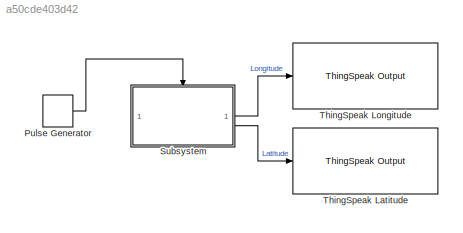
MODEL slx_a50cde403d42
KIND model
CONFIG AbsTol = auto
CONFIG EnableMultiTasking = off
CONFIG FixedStep = auto
CONFIG MaxStep = auto
CONFIG MinStep = auto
CONFIG RelTol = 1e-3
CONFIG SampleTimeConstraint = Unconstrained
CONFIG SolverName = VariableStepAuto
CONFIG StartTime = 0.0
CONFIG StopTime = 24225
BLOCK [DiscretePulseGenerator] Pulse Generator
  Period = 15
  PhaseDelay = 15
  PulseType = Time based
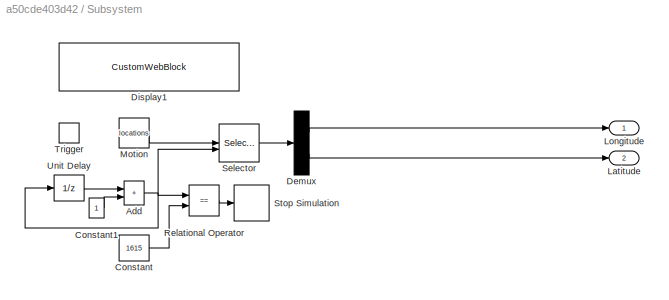
BLOCK [SubSystem] Subsystem
BLOCK [Sum] Subsystem/Add
  IconShape = rectangular
BLOCK [Constant] Subsystem/Constant
  Value = 1615
BLOCK [Constant] Subsystem/Constant1
BLOCK [Demux] Subsystem/Demux
  Outputs = 2
BLOCK [CustomWebBlock] Subsystem/Display1
  Configuration = {"components":[{"name":"DisplayComponent","settings":{"bold":false,"font":"DSEG7 Classic","fontColor":[255,255,200],"fontSize":"14","format":"short","formatString":"%d","italic":false,"position":[0,0,1,1],"underline":false}},{"name":"BackgroundImageComponent","settings":{"image":{"size":[300,80],"src":"data:image\/svg+xml;base64,PHN2ZyBpZD0iZnJhbWUiIHhtbG5zPSJodHRwOi8vd3d3LnczLm9yZy8yMDAwL3N2ZyIge...<+1637ch>
  LabelPosition = Bottom
  ShowInitialText = on
BLOCK [Outport] Subsystem/Latitude
  Port = 2
BLOCK [Outport] Subsystem/Longitude
BLOCK [Constant] Subsystem/Motion
  Value = locations
BLOCK [RelationalOperator] Subsystem/Relational Operator
  InputSameDT = off
  Operator = ==
  OutDataTypeStr = boolean
  RndMeth = Simplest
BLOCK [Selector] Subsystem/Selector
  IndexOptions = Index vector (port),Select all
  Indices = [1 3],1
  InputPortWidth = 2
  NumberOfDimensions = 2
  OutputSizes = 1,1
BLOCK [Stop] Subsystem/Stop Simulation
BLOCK [TriggerPort] Subsystem/Trigger
  PortDimensions = 1
  StatesWhenEnabling = held
  VariantControl = (inherit)
BLOCK [UnitDelay] Subsystem/Unit Delay
  HasFrameUpgradeWarning = on
  SampleTime = -1
BLOCK [Reference] ThingSpeak Latitude  REF=sldrtlib/Internet of Things/ThingSpeak Output
  SourceBlock = sldrtlib/Internet of Things/ThingSpeak Output
  SourceType = Simulink Desktop Real-Time ThingSpeak Output
BLOCK [Reference] ThingSpeak Longitude  REF=sldrtlib/Internet of Things/ThingSpeak Output
  SourceBlock = sldrtlib/Internet of Things/ThingSpeak Output
  SourceType = Simulink Desktop Real-Time ThingSpeak Output
LINE Pulse Generator:1 -> Subsystem:trigger
NET Subsystem/Add:1 -> Subsystem/Relational Operator:1, Subsystem/Selector:2, Subsystem/Unit Delay:1
LINE Subsystem/Constant1:1 -> Subsystem/Add:2
LINE Subsystem/Constant:1 -> Subsystem/Relational Operator:2
LINE Subsystem/Demux:1 -> Subsystem/Longitude:1
LINE Subsystem/Demux:2 -> Subsystem/Latitude:1
LINE Subsystem/Motion:1 -> Subsystem/Selector:1
LINE Subsystem/Relational Operator:1 -> Subsystem/Stop Simulation:1
LINE Subsystem/Selector:1 -> Subsystem/Demux:1
LINE Subsystem/Unit Delay:1 -> Subsystem/Add:1
LINE Subsystem:1 -> ThingSpeak Longitude:1
LINE Subsystem:2 -> ThingSpeak Latitude:1
note: NET lines group one-source signal fan-out (src -> all destinations, sorted); 1:1 wires keep LINE
